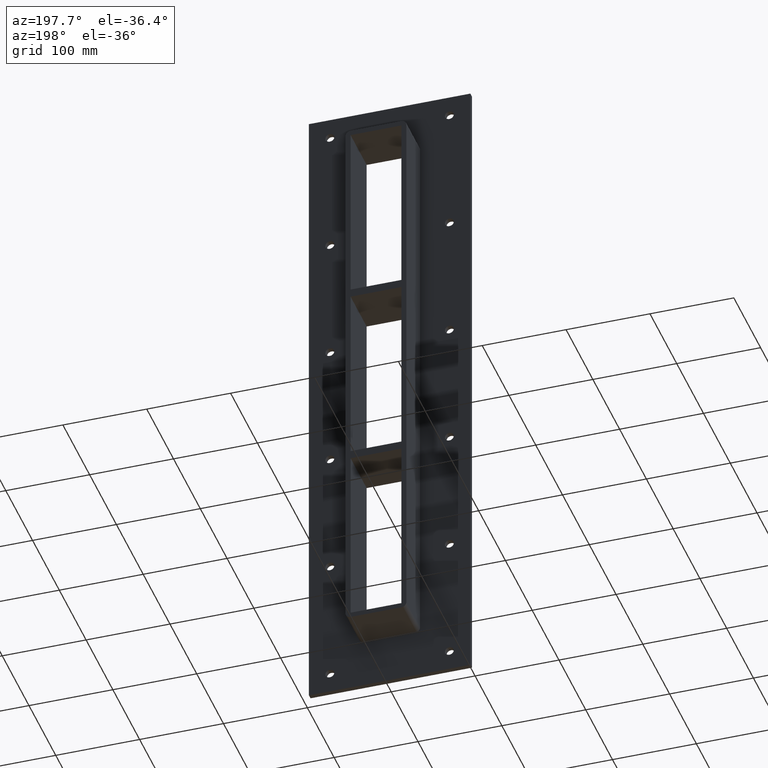
[diagram: clean part render]
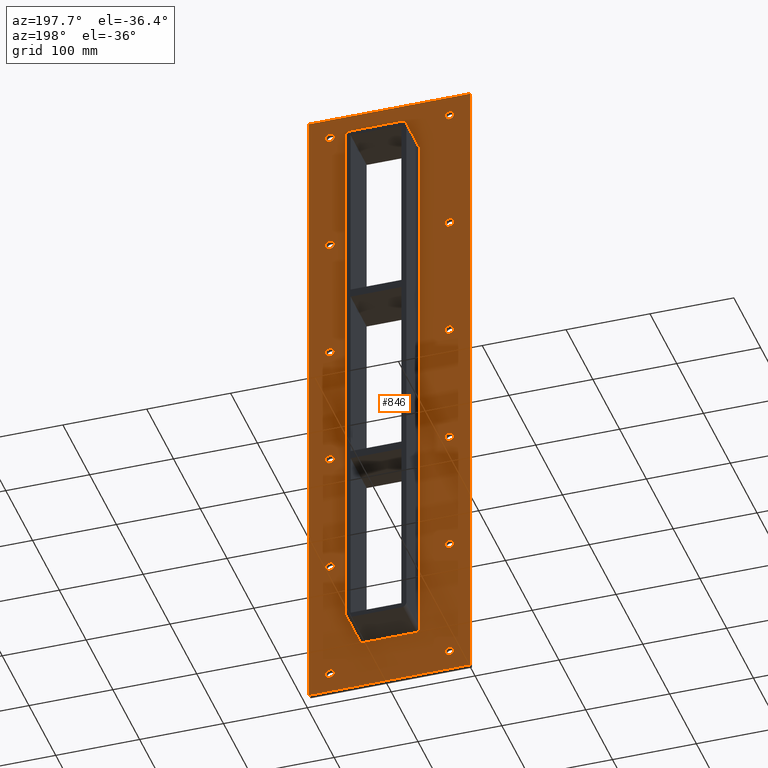
[diagram: same view with one face highlighted and labeled with its STEP entity id]
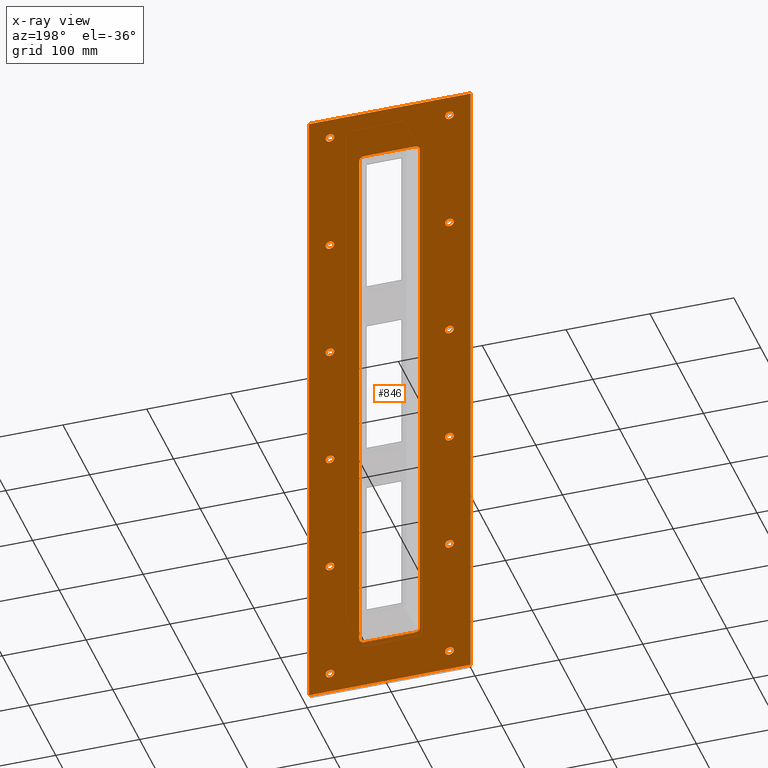
[diagram: x-ray of the same camera — body ghosted, the highlighted face saturated]
A machine part, auxiliary view. The second image highlights one B-rep face of the part: STEP entity #846.
The next image is the same camera in x-ray: the body ghosted, the highlighted face saturated — about 0% of this face is hidden behind the body in this view.
In plain terms, the highlighted planar face has unit normal (0, 1, 0).
Its self-contained STEP definition (entity closure, byte-faithful):
#73=CARTESIAN_POINT('',(-76.500000000000085,5.999999999999943,-378.00000000000006));
#74=VERTEX_POINT('',#73);
#75=CARTESIAN_POINT('',(-71.250000000000085,5.999999999999943,-378.00000000000006));
#76=DIRECTION('',(0.0,-1.0,0.0));
#77=DIRECTION('',(1.0,0.0,0.0));
#78=AXIS2_PLACEMENT_3D('',#75,#76,#77);
#79=CIRCLE('',#78,5.25);
#80=EDGE_CURVE('',#74,#74,#79,.T.);
#101=CARTESIAN_POINT('',(65.999999999999915,5.999999999999943,-226.80000000000007));
#102=VERTEX_POINT('',#101);
#103=CARTESIAN_POINT('',(71.249999999999915,5.999999999999943,-226.80000000000007));
#104=DIRECTION('',(0.0,-1.0,0.0));
#105=DIRECTION('',(1.0,0.0,0.0));
#106=AXIS2_PLACEMENT_3D('',#103,#104,#105);
#107=CIRCLE('',#106,5.25);
#108=EDGE_CURVE('',#102,#102,#107,.T.);
#129=CARTESIAN_POINT('',(-76.500000000000085,5.999999999999943,-226.80000000000007));
#130=VERTEX_POINT('',#129);
#131=CARTESIAN_POINT('',(-71.250000000000085,5.999999999999943,-226.80000000000007));
#132=DIRECTION('',(0.0,-1.0,0.0));
#133=DIRECTION('',(1.0,0.0,0.0));
#134=AXIS2_PLACEMENT_3D('',#131,#132,#133);
#135=CIRCLE('',#134,5.25);
#136=EDGE_CURVE('',#130,#130,#135,.T.);
#157=CARTESIAN_POINT('',(65.999999999999915,5.999999999999943,-75.600000000000108));
#158=VERTEX_POINT('',#157);
#159=CARTESIAN_POINT('',(71.249999999999915,5.999999999999943,-75.600000000000108));
#160=DIRECTION('',(0.0,-1.0,0.0));
#161=DIRECTION('',(1.0,0.0,0.0));
#162=AXIS2_PLACEMENT_3D('',#159,#160,#161);
#163=CIRCLE('',#162,5.25);
#164=EDGE_CURVE('',#158,#158,#163,.T.);
#185=CARTESIAN_POINT('',(-76.500000000000085,5.999999999999943,-75.600000000000108));
#186=VERTEX_POINT('',#185);
#187=CARTESIAN_POINT('',(-71.250000000000085,5.999999999999943,-75.600000000000108));
#188=DIRECTION('',(0.0,-1.0,0.0));
#189=DIRECTION('',(1.0,0.0,0.0));
#190=AXIS2_PLACEMENT_3D('',#187,#188,#189);
#191=CIRCLE('',#190,5.25);
#192=EDGE_CURVE('',#186,#186,#191,.T.);
#213=CARTESIAN_POINT('',(65.999999999999915,5.999999999999943,75.599999999999937));
#214=VERTEX_POINT('',#213);
#215=CARTESIAN_POINT('',(71.249999999999915,5.999999999999943,75.599999999999937));
#216=DIRECTION('',(0.0,-1.0,0.0));
#217=DIRECTION('',(1.0,0.0,0.0));
#218=AXIS2_PLACEMENT_3D('',#215,#216,#217);
#219=CIRCLE('',#218,5.25);
#220=EDGE_CURVE('',#214,#214,#219,.T.);
#241=CARTESIAN_POINT('',(-76.500000000000085,5.999999999999943,75.599999999999937));
#242=VERTEX_POINT('',#241);
#243=CARTESIAN_POINT('',(-71.250000000000085,5.999999999999943,75.599999999999937));
#244=DIRECTION('',(0.0,-1.0,0.0));
#245=DIRECTION('',(1.0,0.0,0.0));
#246=AXIS2_PLACEMENT_3D('',#243,#244,#245);
#247=CIRCLE('',#246,5.25);
#248=EDGE_CURVE('',#242,#242,#247,.T.);
#269=CARTESIAN_POINT('',(65.999999999999915,5.999999999999943,226.79999999999993));
#270=VERTEX_POINT('',#269);
#271=CARTESIAN_POINT('',(71.249999999999915,5.999999999999943,226.79999999999993));
#272=DIRECTION('',(0.0,-1.0,0.0));
#273=DIRECTION('',(1.0,0.0,0.0));
#274=AXIS2_PLACEMENT_3D('',#271,#272,#273);
#275=CIRCLE('',#274,5.25);
#276=EDGE_CURVE('',#270,#270,#275,.T.);
#297=CARTESIAN_POINT('',(-76.500000000000085,5.999999999999943,226.79999999999993));
#298=VERTEX_POINT('',#297);
#299=CARTESIAN_POINT('',(-71.250000000000085,5.999999999999943,226.79999999999993));
#300=DIRECTION('',(0.0,-1.0,0.0));
#301=DIRECTION('',(1.0,0.0,0.0));
#302=AXIS2_PLACEMENT_3D('',#299,#300,#301);
#303=CIRCLE('',#302,5.25);
#304=EDGE_CURVE('',#298,#298,#303,.T.);
#325=CARTESIAN_POINT('',(65.999999999999915,5.999999999999943,-378.00000000000006));
#326=VERTEX_POINT('',#325);
#327=CARTESIAN_POINT('',(71.249999999999915,5.999999999999943,-378.00000000000006));
#328=DIRECTION('',(0.0,-1.0,0.0));
#329=DIRECTION('',(1.0,0.0,0.0));
#330=AXIS2_PLACEMENT_3D('',#327,#328,#329);
#331=CIRCLE('',#330,5.25);
#332=EDGE_CURVE('',#326,#326,#331,.T.);
#353=CARTESIAN_POINT('',(-76.500000000000085,5.999999999999943,377.99999999999989));
#354=VERTEX_POINT('',#353);
#355=CARTESIAN_POINT('',(-71.250000000000085,5.999999999999943,377.99999999999989));
#356=DIRECTION('',(0.0,-1.0,0.0));
#357=DIRECTION('',(1.0,0.0,0.0));
#358=AXIS2_PLACEMENT_3D('',#355,#356,#357);
#359=CIRCLE('',#358,5.25);
#360=EDGE_CURVE('',#354,#354,#359,.T.);
#381=CARTESIAN_POINT('',(65.999999999999915,5.999999999999943,377.99999999999989));
#382=VERTEX_POINT('',#381);
#383=CARTESIAN_POINT('',(71.249999999999915,5.999999999999943,377.99999999999989));
#384=DIRECTION('',(0.0,-1.0,0.0));
#385=DIRECTION('',(1.0,0.0,0.0));
#386=AXIS2_PLACEMENT_3D('',#383,#384,#385);
#387=CIRCLE('',#386,5.25);
#388=EDGE_CURVE('',#382,#382,#387,.T.);
#701=CARTESIAN_POINT('',(0.0,6.000000000000001,0.0));
#702=DIRECTION('',(0.0,1.0,0.0));
#703=DIRECTION('',(0.0,0.0,1.0));
#704=AXIS2_PLACEMENT_3D('',#701,#702,#703);
#705=PLANE('',#704);
#706=CARTESIAN_POINT('',(-96.249999999999986,6.000000000000001,403.00000000000006));
#707=VERTEX_POINT('',#706);
#708=CARTESIAN_POINT('',(96.249999999999986,6.000000000000001,403.00000000000006));
#709=VERTEX_POINT('',#708);
#710=CARTESIAN_POINT('',(-96.249999999999986,6.000000000000001,403.00000000000006));
#711=DIRECTION('',(1.0,0.0,0.0));
#712=VECTOR('',#711,192.49999999999997);
#713=LINE('',#710,#712);
#714=EDGE_CURVE('',#707,#709,#713,.T.);
#715=ORIENTED_EDGE('',*,*,#714,.T.);
#716=CARTESIAN_POINT('',(96.249999999999986,6.000000000000001,-403.00000000000006));
#717=VERTEX_POINT('',#716);
#718=CARTESIAN_POINT('',(96.249999999999986,6.000000000000001,403.00000000000006));
#719=DIRECTION('',(0.0,0.0,-1.0));
#720=VECTOR('',#719,806.00000000000011);
#721=LINE('',#718,#720);
#722=EDGE_CURVE('',#709,#717,#721,.T.);
#723=ORIENTED_EDGE('',*,*,#722,.T.);
#724=CARTESIAN_POINT('',(-96.249999999999986,6.000000000000001,-403.00000000000006));
#725=VERTEX_POINT('',#724);
#726=CARTESIAN_POINT('',(96.249999999999986,6.000000000000001,-403.00000000000006));
#727=DIRECTION('',(-1.0,0.0,0.0));
#728=VECTOR('',#727,192.49999999999997);
#729=LINE('',#726,#728);
#730=EDGE_CURVE('',#717,#725,#729,.T.);
#731=ORIENTED_EDGE('',*,*,#730,.T.);
#732=CARTESIAN_POINT('',(-96.249999999999986,6.000000000000001,-403.00000000000006));
#733=DIRECTION('',(0.0,0.0,1.0));
#734=VECTOR('',#733,806.00000000000011);
#735=LINE('',#732,#734);
#736=EDGE_CURVE('',#725,#707,#735,.T.);
#737=ORIENTED_EDGE('',*,*,#736,.T.);
#738=EDGE_LOOP('',(#715,#723,#731,#737));
#739=FACE_OUTER_BOUND('',#738,.T.);
#740=ORIENTED_EDGE('',*,*,#80,.T.);
#741=EDGE_LOOP('',(#740));
#742=FACE_BOUND('',#741,.T.);
#743=ORIENTED_EDGE('',*,*,#108,.T.);
#744=EDGE_LOOP('',(#743));
#745=FACE_BOUND('',#744,.T.);
#746=ORIENTED_EDGE('',*,*,#136,.T.);
#747=EDGE_LOOP('',(#746));
#748=FACE_BOUND('',#747,.T.);
#749=ORIENTED_EDGE('',*,*,#164,.T.);
#750=EDGE_LOOP('',(#749));
#751=FACE_BOUND('',#750,.T.);
#752=ORIENTED_EDGE('',*,*,#192,.T.);
#753=EDGE_LOOP('',(#752));
#754=FACE_BOUND('',#753,.T.);
#755=ORIENTED_EDGE('',*,*,#220,.T.);
#756=EDGE_LOOP('',(#755));
#757=FACE_BOUND('',#756,.T.);
#758=ORIENTED_EDGE('',*,*,#248,.T.);
#759=EDGE_LOOP('',(#758));
#760=FACE_BOUND('',#759,.T.);
#761=ORIENTED_EDGE('',*,*,#276,.T.);
#762=EDGE_LOOP('',(#761));
#763=FACE_BOUND('',#762,.T.);
#764=ORIENTED_EDGE('',*,*,#304,.T.);
#765=EDGE_LOOP('',(#764));
#766=FACE_BOUND('',#765,.T.);
#767=ORIENTED_EDGE('',*,*,#332,.T.);
#768=EDGE_LOOP('',(#767));
#769=FACE_BOUND('',#768,.T.);
#770=ORIENTED_EDGE('',*,*,#360,.T.);
#771=EDGE_LOOP('',(#770));
#772=FACE_BOUND('',#771,.T.);
#773=ORIENTED_EDGE('',*,*,#388,.T.);
#774=EDGE_LOOP('',(#773));
#775=FACE_BOUND('',#774,.T.);
#776=CARTESIAN_POINT('',(-36.25,6.000000000000001,337.0));
#777=VERTEX_POINT('',#776);
#778=CARTESIAN_POINT('',(-30.250000000000004,6.000000000000001,343.00000000000006));
#779=VERTEX_POINT('',#778);
#780=CARTESIAN_POINT('',(-30.250000000000004,6.000000000000001,337.0));
#781=DIRECTION('',(0.0,1.0,0.0));
#782=DIRECTION('',(-0.707106781186551,0.0,0.707106781186544));
#783=AXIS2_PLACEMENT_3D('',#780,#781,#782);
#784=CIRCLE('',#783,6.0);
#785=EDGE_CURVE('',#777,#779,#784,.T.);
#786=ORIENTED_EDGE('',*,*,#785,.F.);
#787=CARTESIAN_POINT('',(-36.25,6.000000000000001,-337.0));
#788=VERTEX_POINT('',#787);
#789=CARTESIAN_POINT('',(-36.25,6.000000000000001,-337.0));
#790=DIRECTION('',(0.0,0.0,1.0));
#791=VECTOR('',#790,674.00000000000011);
#792=LINE('',#789,#791);
#793=EDGE_CURVE('',#788,#777,#792,.T.);
#794=ORIENTED_EDGE('',*,*,#793,.F.);
#795=CARTESIAN_POINT('',(-30.250000000000004,6.000000000000001,-343.00000000000006));
#796=VERTEX_POINT('',#795);
#797=CARTESIAN_POINT('',(-30.250000000000004,6.000000000000001,-337.0));
#798=DIRECTION('',(0.0,1.0,0.0));
#799=DIRECTION('',(-0.707106781186551,0.0,-0.707106781186544));
#800=AXIS2_PLACEMENT_3D('',#797,#798,#799);
#801=CIRCLE('',#800,6.0);
#802=EDGE_CURVE('',#796,#788,#801,.T.);
#803=ORIENTED_EDGE('',*,*,#802,.F.);
#804=CARTESIAN_POINT('',(30.250000000000004,6.000000000000001,-343.00000000000006));
#805=VERTEX_POINT('',#804);
#806=CARTESIAN_POINT('',(30.250000000000004,6.000000000000001,-343.00000000000006));
#807=DIRECTION('',(-1.0,0.0,0.0));
#808=VECTOR('',#807,60.5);
#809=LINE('',#806,#808);
#810=EDGE_CURVE('',#805,#796,#809,.T.);
#811=ORIENTED_EDGE('',*,*,#810,.F.);
#812=CARTESIAN_POINT('',(36.25,6.000000000000001,-337.0));
#813=VERTEX_POINT('',#812);
#814=CARTESIAN_POINT('',(30.250000000000004,6.000000000000001,-337.0));
#815=DIRECTION('',(0.0,1.0,0.0));
#816=DIRECTION('',(0.707106781186551,0.0,-0.707106781186544));
#817=AXIS2_PLACEMENT_3D('',#814,#815,#816);
#818=CIRCLE('',#817,6.0);
#819=EDGE_CURVE('',#813,#805,#818,.T.);
#820=ORIENTED_EDGE('',*,*,#819,.F.);
#821=CARTESIAN_POINT('',(36.25,6.000000000000001,337.0));
#822=VERTEX_POINT('',#821);
#823=CARTESIAN_POINT('',(36.25,6.000000000000001,337.0));
#824=DIRECTION('',(0.0,0.0,-1.0));
#825=VECTOR('',#824,674.00000000000011);
#826=LINE('',#823,#825);
#827=EDGE_CURVE('',#822,#813,#826,.T.);
#828=ORIENTED_EDGE('',*,*,#827,.F.);
#829=CARTESIAN_POINT('',(30.250000000000004,6.000000000000001,343.00000000000006));
#830=VERTEX_POINT('',#829);
#831=CARTESIAN_POINT('',(30.250000000000004,6.000000000000001,337.0));
#832=DIRECTION('',(0.0,1.0,0.0));
#833=DIRECTION('',(0.707106781186551,0.0,0.707106781186544));
#834=AXIS2_PLACEMENT_3D('',#831,#832,#833);
#835=CIRCLE('',#834,6.0);
#836=EDGE_CURVE('',#830,#822,#835,.T.);
#837=ORIENTED_EDGE('',*,*,#836,.F.);
#838=CARTESIAN_POINT('',(-30.250000000000004,6.000000000000001,343.00000000000006));
#839=DIRECTION('',(1.0,0.0,0.0));
#840=VECTOR('',#839,60.5);
#841=LINE('',#838,#840);
#842=EDGE_CURVE('',#779,#830,#841,.T.);
#843=ORIENTED_EDGE('',*,*,#842,.F.);
#844=EDGE_LOOP('',(#786,#794,#803,#811,#820,#828,#837,#843));
#845=FACE_BOUND('',#844,.T.);
#846=ADVANCED_FACE('',(#739,#742,#745,#748,#751,#754,#757,#760,#763,#766,#769,#772,#775,#845),#705,.T.);